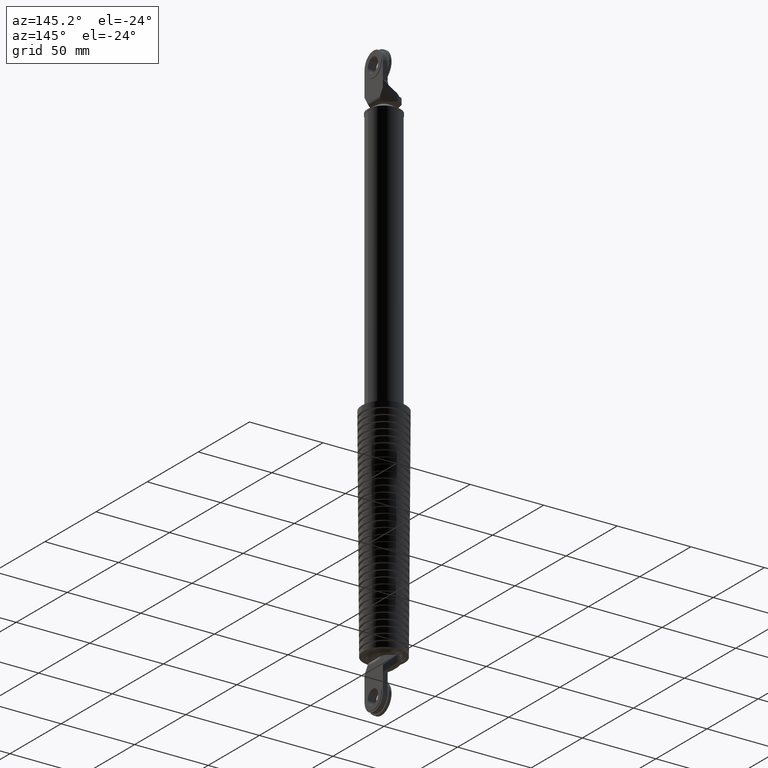
[diagram: clean part render]
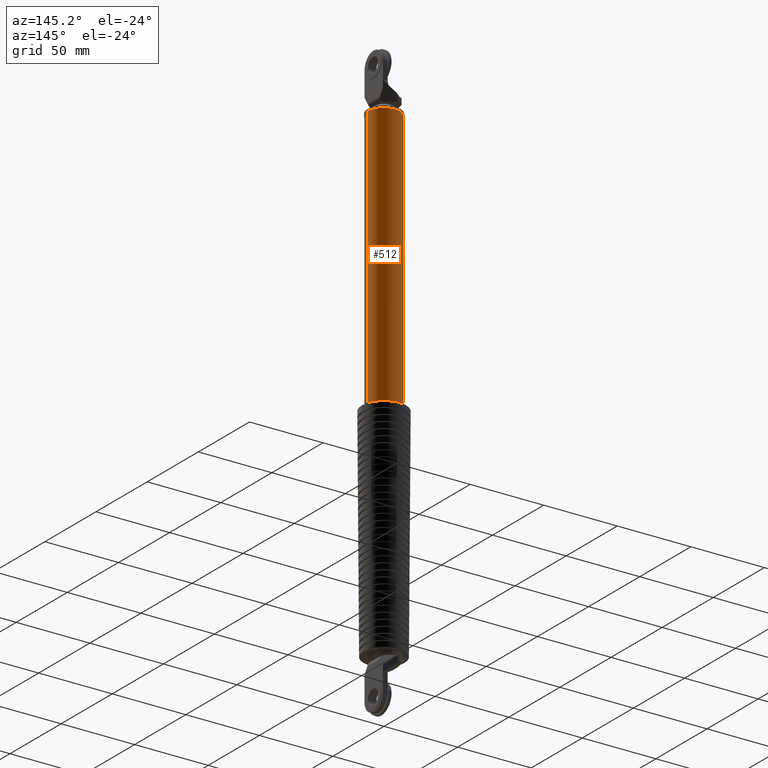
[diagram: same view with one face highlighted and labeled with its STEP entity id]
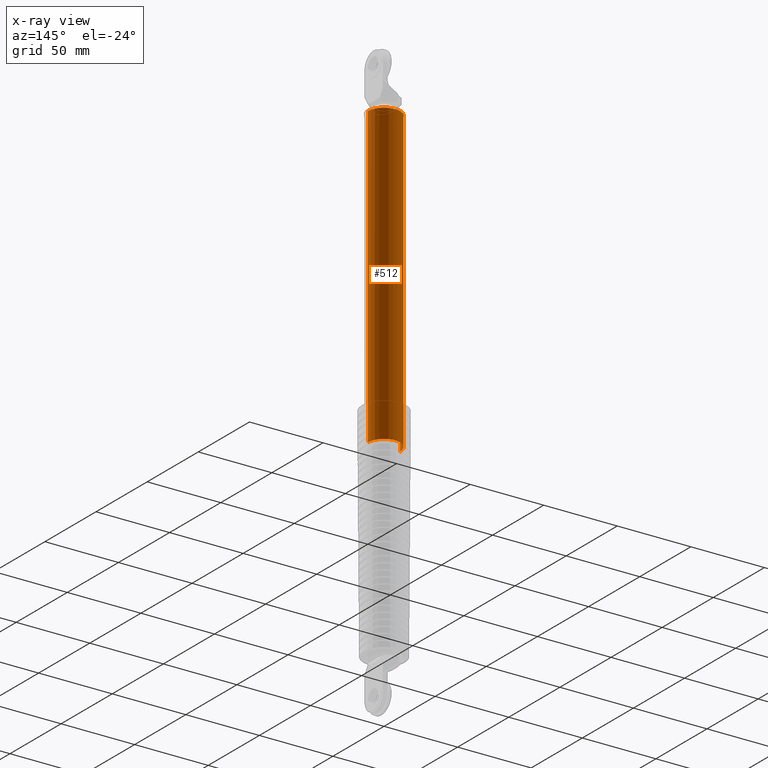
[diagram: x-ray of the same camera — body ghosted, the highlighted face saturated]
A machine part, auxiliary view. The second image highlights one B-rep face of the part: STEP entity #512.
The next image is the same camera in x-ray: the body ghosted, the highlighted face saturated — about 0% of this face is hidden behind the body in this view.
In plain terms, the highlighted cylindrical surface (edge-blend (fillet) strip) has radius 11 mm, axis along (0, 0, 1).
Its self-contained STEP definition (entity closure, byte-faithful):
#512=ADVANCED_FACE('',(#3345),#3344,.T.);
#3344=CYLINDRICAL_SURFACE('',#6176,1.10000000000E+001);
#3345=FACE_OUTER_BOUND('',#6177,.T.);
#6173=CARTESIAN_POINT('',(0.00000000000E+000,0.00000000000E+000,0.00000000000E+000));
#6174=DIRECTION('',(-0.00000000000E+000,-0.00000000000E+000,1.00000000000E+000));
#6175=DIRECTION('',(1.00000000000E+000,0.00000000000E+000,0.00000000000E+000));
#6176=AXIS2_PLACEMENT_3D('',#6173,#6174,#6175);
#6177=EDGE_LOOP('',(#7625,#7626,#7627,#7628));
#7625=ORIENTED_EDGE('',*,*,#8350,.T.);
#7626=ORIENTED_EDGE('',*,*,#8384,.F.);
#7627=ORIENTED_EDGE('',*,*,#8385,.F.);
#7628=ORIENTED_EDGE('',*,*,#8386,.T.);
#8350=EDGE_CURVE('',#12012,#12011,#12019,.T.);
#8384=EDGE_CURVE('',#12240,#12011,#12241,.T.);
#8385=EDGE_CURVE('',#12247,#12240,#12248,.T.);
#8386=EDGE_CURVE('',#12247,#12012,#12254,.T.);
#12011=VERTEX_POINT('',#14960);
#12012=VERTEX_POINT('',#14961);
#12019=CIRCLE('',#14969,1.10000000000E+001);
#12240=VERTEX_POINT('',#15101);
#12241=(BOUNDED_CURVE() B_SPLINE_CURVE(1,(#15102,#15103),.UNSPECIFIED.,.F.,.F.) B_SPLINE_CURVE_WITH_KNOTS((2,2),(4.49640316890E-002,9.55035968134E-001),.UNSPECIFIED.) CURVE() GEOMETRIC_REPRESENTATION_ITEM() RATIONAL_B_SPLINE_CURVE((1.00000000000E+000,1.00000000000E+000)) REPRESENTATION_ITEM('') );
#12247=VERTEX_POINT('',#15104);
#12248=CIRCLE('',#15108,1.10000000000E+001);
#12254=(BOUNDED_CURVE() B_SPLINE_CURVE(1,(#15109,#15110),.UNSPECIFIED.,.F.,.F.) B_SPLINE_CURVE_WITH_KNOTS((2,2),(4.49640318096E-002,9.55035968190E-001),.UNSPECIFIED.) CURVE() GEOMETRIC_REPRESENTATION_ITEM() RATIONAL_B_SPLINE_CURVE((7.50000000000E-001,7.50000000000E-001)) REPRESENTATION_ITEM('') );
#14960=CARTESIAN_POINT('',(1.10000000000E+001,5.92118946467E-016,2.23899985000E+002));
#14961=CARTESIAN_POINT('',(-1.10000000000E+001,0.00000000000E+000,2.23899985000E+002));
#14966=CARTESIAN_POINT('',(0.00000000000E+000,0.00000000000E+000,2.23899985000E+002));
#14967=DIRECTION('',(-0.00000000000E+000,0.00000000000E+000,-1.00000000000E+000));
#14968=DIRECTION('',(-1.00000000000E+000,-1.22460635382E-016,0.00000000000E+000));
#14969=AXIS2_PLACEMENT_3D('',#14966,#14967,#14968);
#15101=CARTESIAN_POINT('',(1.10000000000E+001,5.92118946467E-016,2.15000000000E+001));
#15102=CARTESIAN_POINT('',(1.10000000000E+001,0.00000000000E+000,2.14999999732E+001));
#15103=CARTESIAN_POINT('',(1.10000000000E+001,0.00000000000E+000,2.23899984987E+002));
#15104=CARTESIAN_POINT('',(-1.10000000000E+001,0.00000000000E+000,2.15000000000E+001));
#15105=CARTESIAN_POINT('',(0.00000000000E+000,0.00000000000E+000,2.15000000000E+001));
#15106=DIRECTION('',(-0.00000000000E+000,0.00000000000E+000,-1.00000000000E+000));
#15107=DIRECTION('',(-1.00000000000E+000,-1.22460635382E-016,0.00000000000E+000));
#15108=AXIS2_PLACEMENT_3D('',#15105,#15106,#15107);
#15109=CARTESIAN_POINT('',(-1.10000000000E+001,0.00000000000E+000,2.15000000000E+001));
#15110=CARTESIAN_POINT('',(-1.10000000000E+001,0.00000000000E+000,2.23899985000E+002));